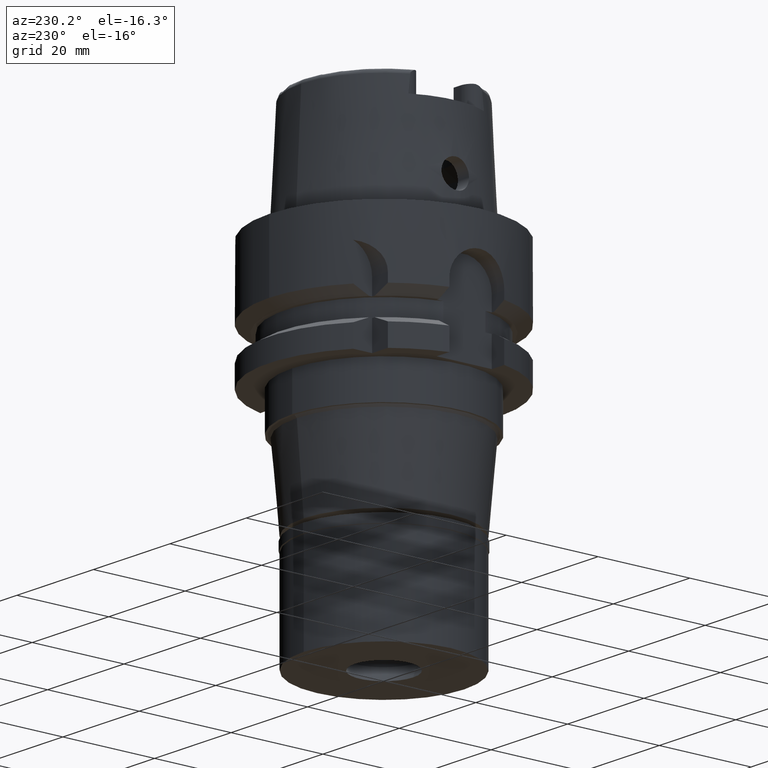
[diagram: clean part render]
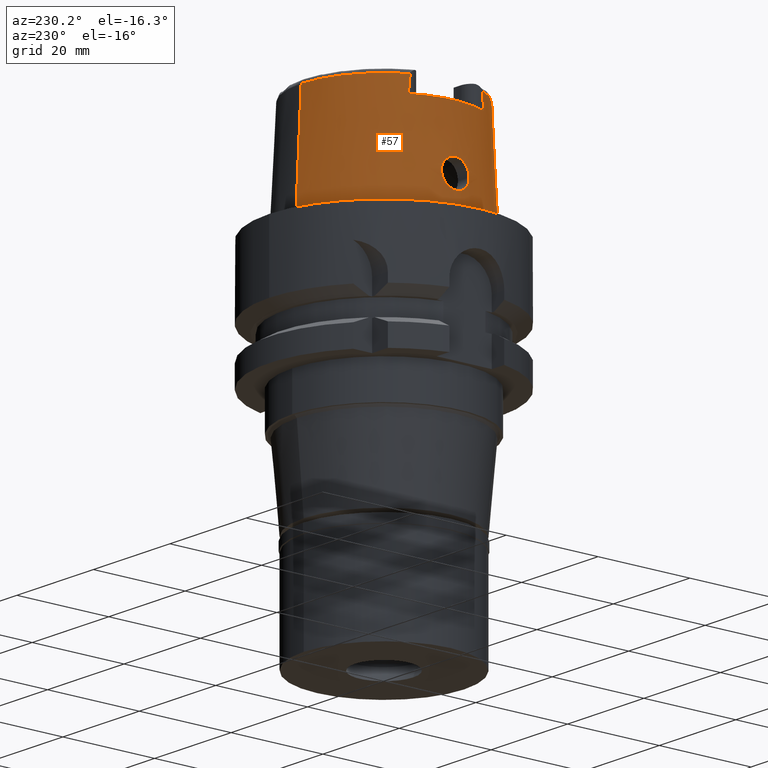
[diagram: same view with one face highlighted and labeled with its STEP entity id]
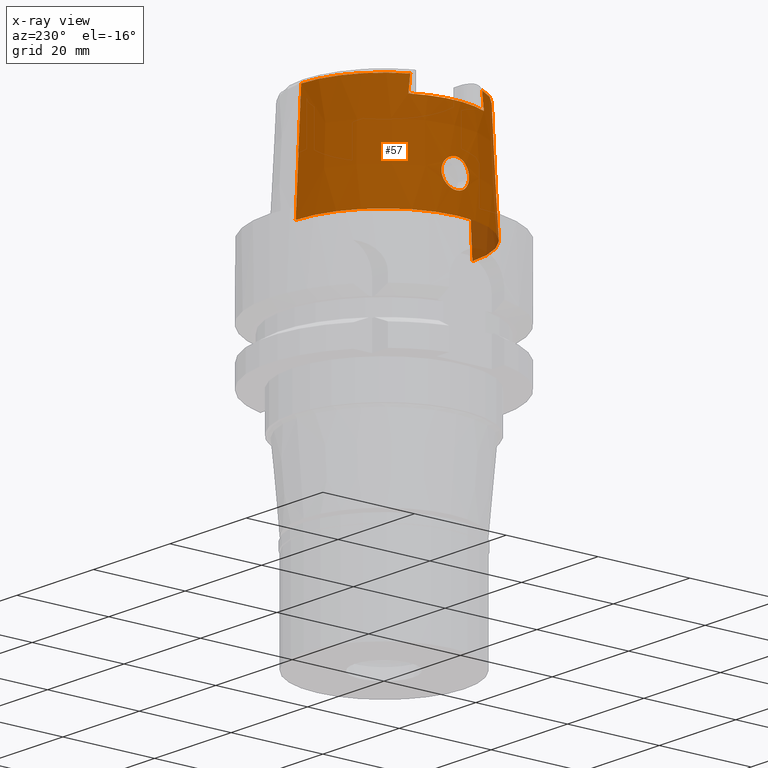
[diagram: x-ray of the same camera — body ghosted, the highlighted face saturated]
A machine part, auxiliary view. The second image highlights one B-rep face of the part: STEP entity #57.
The next image is the same camera in x-ray: the body ghosted, the highlighted face saturated — about 3% of this face is hidden behind the body in this view.
In plain terms, the highlighted conical surface has half-angle 2.862 deg.
Its self-contained STEP definition (entity closure, byte-faithful):
#2 = CARTESIAN_POINT ( 'NONE',  ( -18.78317867109000261, -2.543182901459551282, 5.905781390008264964 ) ) ;
#57 = ADVANCED_FACE ( 'NONE', ( #2540, #5004 ), #3072, .T. ) ;
#77 = CARTESIAN_POINT ( 'NONE',  ( -18.69905174913464663, -1.200609655445082913, 10.24979054899328546 ) ) ;
#87 = CARTESIAN_POINT ( 'NONE',  ( -18.61941794700497965, 2.976814471011775431, 7.884438008179934343 ) ) ;
#93 = DIRECTION ( 'NONE',  ( -0.0008255998758101713419, -0.9999996591923644429, 0.0000000000000000000 ) ) ;
#109 = CARTESIAN_POINT ( 'NONE',  ( -18.72500050292000395, -0.3637979385046110070, 10.49999999999999822 ) ) ;
#115 = CARTESIAN_POINT ( 'NONE',  ( -18.67725256375019782, 1.645140865340761538, 10.00872698857956777 ) ) ;
#140 = CARTESIAN_POINT ( 'NONE',  ( -18.70181002438285489, 2.863970963131752701, 6.605424980111425981 ) ) ;
#160 = CARTESIAN_POINT ( 'NONE',  ( -18.63727310925785474, -2.999781043391905211, 7.457170492873992806 ) ) ;
#165 = CARTESIAN_POINT ( 'NONE',  ( -18.63254420033168302, 2.999662694504059868, 7.550856638169310742 ) ) ;
#193 = CARTESIAN_POINT ( 'NONE',  ( -18.61867736597494272, -2.981641155549509037, 7.884900952623397075 ) ) ;
#198 = CARTESIAN_POINT ( 'NONE',  ( -18.70767736476419074, 0.9777757012461569808, 10.33702110091818582 ) ) ;
#203 = DIRECTION ( 'NONE',  ( 0.0000000000000000000, 0.0000000000000000000, -1.000000000000000000 ) ) ;
#221 = CARTESIAN_POINT ( 'NONE',  ( -18.79116365286348866, 2.505703896633280525, 5.850272712413715936 ) ) ;
#272 = CARTESIAN_POINT ( 'NONE',  ( -18.97336778263396440, 1.214075213159073519, 4.756490140291568913 ) ) ;
#321 = CARTESIAN_POINT ( 'NONE',  ( -18.96722189363222100, 1.284125539225417834, 4.788092424230977251 ) ) ;
#364 = CARTESIAN_POINT ( 'NONE',  ( -16.25999847872000004, -7.831027618096999987, 24.04990900411999988 ) ) ;
#412 = CARTESIAN_POINT ( 'NONE',  ( -18.95243251535256945, -1.442797455025204734, 4.862428241929213080 ) ) ;
#429 = DIRECTION ( 'NONE',  ( 0.0000000000000000000, 0.04993752584486958745, -0.9987523434327917338 ) ) ;
#440 = CARTESIAN_POINT ( 'NONE',  ( -18.99667356104094651, -0.9020090488567584774, 4.638383846352464701 ) ) ;
#486 = CARTESIAN_POINT ( 'NONE',  ( -18.63652154279030526, -2.314451385222980662, 9.409494088307585713 ) ) ;
#494 = CARTESIAN_POINT ( 'NONE',  ( -18.61281738485488546, 2.756672172026412682, 8.683585815113117334 ) ) ;
#511 = AXIS2_PLACEMENT_3D ( 'NONE', #2303, #203, #93 ) ;
#516 = CARTESIAN_POINT ( 'NONE',  ( -18.64363695875750082, -2.996495092323358200, 7.342724136219549003 ) ) ;
#526 = CARTESIAN_POINT ( 'NONE',  ( -18.66678919468971642, 1.830010130735698626, 9.879236572641010738 ) ) ;
#556 = CARTESIAN_POINT ( 'NONE',  ( -18.67649840777863801, 1.658768133261694366, 9.999727965424508369 ) ) ;
#561 = ORIENTED_EDGE ( 'NONE', *, *, #1120, .F. ) ;
#580 = CARTESIAN_POINT ( 'NONE',  ( -18.61118138876417305, 2.906747813182755102, 8.267360866589770652 ) ) ;
#600 = CARTESIAN_POINT ( 'NONE',  ( -18.68037858809938001, -1.592436934103090174, 10.04425144414142324 ) ) ;
#606 = CARTESIAN_POINT ( 'NONE',  ( -18.67930597482952138, 2.930195257452143043, 6.849226751979418104 ) ) ;
#678 = CARTESIAN_POINT ( 'NONE',  ( -16.26000000000000156, 8.231833128876001382, 20.50000000000000000 ) ) ;
#680 = EDGE_CURVE ( 'NONE', #3957, #4911, #1752, .T. ) ;
#682 = CARTESIAN_POINT ( 'NONE',  ( -18.97818491826060949, 1.156531480243881305, 4.731860230907436460 ) ) ;
#733 = CARTESIAN_POINT ( 'NONE',  ( -18.81545218249813800, 2.385618362130512704, 5.678307914358795117 ) ) ;
#760 = DIRECTION ( 'NONE',  ( 0.0000000000000000000, 0.0000000000000000000, -1.000000000000000000 ) ) ;
#794 = CARTESIAN_POINT ( 'NONE',  ( -18.98061824987300739, -1.126521635024176016, 4.719534379617163822 ) ) ;
#823 = CARTESIAN_POINT ( 'NONE',  ( -18.85221763492965508, -2.182749817020052330, 5.439577261374716421 ) ) ;
#850 = CARTESIAN_POINT ( 'NONE',  ( -18.68776496797520892, -2.910133991911544094, 6.744943504827316083 ) ) ;
#862 = ORIENTED_EDGE ( 'NONE', *, *, #3869, .T. ) ;
#909 = CARTESIAN_POINT ( 'NONE',  ( -18.64910187410765730, 2.114915691382066143, 9.627750644070887986 ) ) ;
#926 = CARTESIAN_POINT ( 'NONE',  ( -18.64784935793283793, -2.134264458295163092, 9.608332506129109163 ) ) ;
#932 = CARTESIAN_POINT ( 'NONE',  ( -18.62998369241950769, 2.410739380939730836, 9.296350331518681287 ) ) ;
#962 = CARTESIAN_POINT ( 'NONE',  ( -18.72615670706782964, 2.780065762846364308, 6.372490338762759166 ) ) ;
#990 = CARTESIAN_POINT ( 'NONE',  ( -18.68047219032365902, 1.586056035418208277, 10.04671932015213542 ) ) ;
#1013 = B_SPLINE_CURVE_WITH_KNOTS ( 'NONE', 3,
 ( #3833, #2515, #1268, #3576, #5177, #1357, #198, #1894, #1449, #4813, #2243, #5286, #1473, #1804, #1777, #3103, #3134, #990, #3156, #115, #556, #4754, #526, #4335, #5259, #4396, #3966, #2659, #909, #3044, #932, #2598, #4311, #4840, #2686, #3943, #494, #2180, #3492, #3465, #580, #3884, #87, #2626, #2267, #5201, #165, #2299, #3999, #2214, #606, #3919, #140, #1016, #1382, #3068, #4780, #962, #2708, #5227, #4368, #1830, #1862, #4418, #3516, #3550, #1417, #221, #2327, #733, #2424, #4898, #1496, #4553, #1150, #1937, #2764, #4026, #3211, #2843, #1915, #321, #272, #3596, #3623, #682, #5309, #4475, #4944 ),
 .UNSPECIFIED., .F., .F.,
 ( 4, 2, 2, 1, 1, 1, 2, 2, 2, 2, 1, 2, 2, 2, 1, 1, 2, 2, 2, 2, 1, 1, 2, 2, 2, 2, 1, 2, 2, 2, 2, 1, 1, 1, 2, 2, 2, 2, 1, 2, 2, 2, 1, 1, 2, 2, 2, 2, 1, 1, 2, 2, 4 ),
 ( 0.0000000000000000000, 0.06250000000000212330, 0.09375000000000320577, 0.1093750000000037748, 0.1171875000000040662, 0.1210937500000042882, 0.1230468750000043576, 0.1250000000000044131, 0.1562500000000062728, 0.1718750000000073552, 0.1796875000000078548, 0.1835937500000079659, 0.1875000000000080769, 0.2187500000000090761, 0.2343750000000094369, 0.2421875000000097700, 0.2460937500000099087, 0.2500000000000100475, 0.3125000000000138778, 0.3437500000000155431, 0.3593750000000163758, 0.3671875000000168199, 0.3710937500000167644, 0.3750000000000167644, 0.4375000000000138778, 0.4687500000000121569, 0.4843750000000113798, 0.4921875000000111577, 0.5000000000000108802, 0.5625000000000096589, 0.5937500000000088818, 0.6093750000000084377, 0.6171875000000083267, 0.6210937500000081046, 0.6230468750000079936, 0.6250000000000077716, 0.6562500000000064393, 0.6718750000000059952, 0.6796875000000057732, 0.6835937500000056621, 0.6875000000000055511, 0.7187500000000032196, 0.7343750000000021094, 0.7421875000000015543, 0.7460937500000013323, 0.7500000000000011102, 0.8125000000000004441, 0.8437500000000002220, 0.8593750000000001110, 0.8671875000000000000, 0.8710937500000000000, 0.8749999999999998890, 1.000000000000000000 ),
 .UNSPECIFIED. ) ;
#1016 = CARTESIAN_POINT ( 'NONE',  ( -18.70910209771045629, 2.840347739169283958, 6.531927003020434164 ) ) ;
#1034 = CARTESIAN_POINT ( 'NONE',  ( -18.66412412357258432, -1.869856569162549054, 9.846496997704869969 ) ) ;
#1040 = ORIENTED_EDGE ( 'NONE', *, *, #680, .T. ) ;
#1090 = CARTESIAN_POINT ( 'NONE',  ( 0.0000000000000000000, -18.04750486565000145, 24.04993752584000077 ) ) ;
#1094 = CARTESIAN_POINT ( 'NONE',  ( -16.25999931409999988, 8.099893749617999461, 21.68718078624999990 ) ) ;
#1120 = EDGE_CURVE ( 'NONE', #4487, #4556, #3612, .T. ) ;
#1150 = CARTESIAN_POINT ( 'NONE',  ( -18.85867725433560693, 2.142250277667373748, 5.399781942548933067 ) ) ;
#1181 = CARTESIAN_POINT ( 'NONE',  ( -18.87995039064653469, -2.007836159205104387, 5.270787893602945751 ) ) ;
#1190 = CARTESIAN_POINT ( 'NONE',  ( 0.0000000000000000000, 19.24999954279000036, -4.547473508865000658E-13 ) ) ;
#1207 = CARTESIAN_POINT ( 'NONE',  ( -18.92340212158069335, -1.691084937128544352, 5.020112088376389892 ) ) ;
#1224 = ORIENTED_EDGE ( 'NONE', *, *, #1632, .F. ) ;
#1236 = CARTESIAN_POINT ( 'NONE',  ( -18.98608067023591772, -1.055954342222598763, 4.691784466248174468 ) ) ;
#1266 = CARTESIAN_POINT ( 'NONE',  ( -18.73165997476919387, -2.759713321698162414, 6.323266678885283376 ) ) ;
#1268 = CARTESIAN_POINT ( 'NONE',  ( -18.72301361969066846, 0.3706975056958774495, 10.48348843469886660 ) ) ;
#1348 = CARTESIAN_POINT ( 'NONE',  ( -18.61120518491071962, -2.835180064831738012, 8.482929330333218942 ) ) ;
#1357 = CARTESIAN_POINT ( 'NONE',  ( -18.71009887869995580, 0.9043307040705063082, 10.36090671361495197 ) ) ;
#1376 = CARTESIAN_POINT ( 'NONE',  ( -18.63614077009056658, -3.000018066726839461, 7.478694371440684385 ) ) ;
#1382 = CARTESIAN_POINT ( 'NONE',  ( -18.71813535120809746, 2.808991883812610002, 6.446068522104414278 ) ) ;
#1417 = CARTESIAN_POINT ( 'NONE',  ( -18.78933116117169533, 2.514409614217483657, 5.863559218408338047 ) ) ;
#1449 = CARTESIAN_POINT ( 'NONE',  ( -18.70286926257444549, 1.106233054716735609, 10.28864693192124058 ) ) ;
#1467 = CARTESIAN_POINT ( 'NONE',  ( -18.61225064547191721, -2.776812552685397062, 8.635496264859815696 ) ) ;
#1473 = CARTESIAN_POINT ( 'NONE',  ( -18.69808283884294653, 1.224585729721122007, 10.23990630222132125 ) ) ;
#1487 = EDGE_LOOP ( 'NONE', ( #3785, #4864 ) ) ;
#1496 = CARTESIAN_POINT ( 'NONE',  ( -18.85144546717684477, 2.185080259455117968, 5.444157273464690583 ) ) ;
#1556 = CARTESIAN_POINT ( 'NONE',  ( -16.25999847872000004, -7.831027618096999987, 24.04990900411999988 ) ) ;
#1576 = AXIS2_PLACEMENT_3D ( 'NONE', #2456, #760, #1694 ) ;
#1582 = VECTOR ( 'NONE', #5331, 999.9999999999998863 ) ;
#1607 = CARTESIAN_POINT ( 'NONE',  ( -19.00517147901265602, -0.7591633685799020759, 4.595944160325019290 ) ) ;
#1632 = EDGE_CURVE ( 'NONE', #4258, #5072, #2400, .T. ) ;
#1658 = CARTESIAN_POINT ( 'NONE',  ( -18.86940905254141398, -2.076123621243992634, 5.334340550258338531 ) ) ;
#1693 = CARTESIAN_POINT ( 'NONE',  ( -18.77200600963357502, -2.593870456717403350, 5.989491943404985363 ) ) ;
#1694 = DIRECTION ( 'NONE',  ( 0.0000000000000000000, -1.000000000000000000, 0.0000000000000000000 ) ) ;
#1717 = CARTESIAN_POINT ( 'NONE',  ( -18.66427907820308008, -2.965529357403232869, 7.035906075427675432 ) ) ;
#1722 = B_SPLINE_CURVE_WITH_KNOTS ( 'NONE', 3,
 ( #2155, #4164, #3314, #5420, #1607, #440, #3800, #1236, #3290, #5003, #794, #2454, #2099, #412, #1207, #2073, #2898, #4607, #1181, #5467, #1658, #2872, #4579, #3342, #823, #2130, #2513, #4221, #2, #1693, #3830, #3377, #2538, #5091, #1266, #4664, #850, #1717, #3405, #5167, #516, #3151, #160, #1376, #3960, #193, #1886, #2173, #3993, #1348, #3511, #3127, #3038, #1467, #3878, #4748, #4413, #3095, #3571, #486, #5281, #4833, #2291, #1853, #5220, #926, #1767, #4861, #1034, #4329, #2620, #4304, #600, #3062, #2204, #3458, #2650, #77, #3913, #109, #1799 ),
 .UNSPECIFIED., .F., .F.,
 ( 4, 2, 2, 1, 1, 1, 2, 2, 2, 2, 2, 1, 1, 2, 2, 2, 2, 2, 1, 2, 2, 2, 2, 1, 2, 2, 2, 2, 1, 1, 1, 2, 2, 2, 2, 2, 1, 2, 2, 2, 2, 2, 2, 2, 2, 4 ),
 ( 0.0000000000000000000, 0.06249999999999963918, 0.09374999999999944489, 0.1093749999999993616, 0.1171874999999992784, 0.1210937499999992090, 0.1230468749999991535, 0.1249999999999990979, 0.1874999999999941158, 0.2187499999999917288, 0.2343749999999905076, 0.2421874999999899247, 0.2460937499999895361, 0.2480468749999893974, 0.2499999999999892863, 0.2812499999999892863, 0.3124999999999893419, 0.3437499999999893419, 0.3593749999999894529, 0.3671874999999893974, 0.3749999999999893419, 0.4374999999999899525, 0.4687499999999903411, 0.4843749999999906186, 0.4921874999999905631, 0.4999999999999905076, 0.5624999999999915623, 0.5937499999999920064, 0.6093749999999922284, 0.6171874999999926725, 0.6210937499999928946, 0.6230468749999930056, 0.6249999999999931166, 0.6874999999999946709, 0.7187499999999953371, 0.7343749999999957812, 0.7421874999999961142, 0.7460937499999963363, 0.7499999999999965583, 0.7812499999999971134, 0.7968749999999973355, 0.8124999999999974465, 0.8437499999999977796, 0.8593749999999978906, 0.8749999999999980016, 1.000000000000000000 ),
 .UNSPECIFIED. ) ;
#1742 = ORIENTED_EDGE ( 'NONE', *, *, #4583, .F. ) ;
#1752 = CIRCLE ( 'NONE', #3607, 18.04750486565000145 ) ;
#1767 = CARTESIAN_POINT ( 'NONE',  ( -18.65279574320733857, -2.056289586372749056, 9.686622997890149023 ) ) ;
#1777 = CARTESIAN_POINT ( 'NONE',  ( -18.68813521668147715, 1.437408589533530456, 10.13368189685686005 ) ) ;
#1778 = CARTESIAN_POINT ( 'NONE',  ( 0.0000000000000000000, 0.0000000000000000000, -4.547473508865000658E-13 ) ) ;
#1799 = CARTESIAN_POINT ( 'NONE',  ( -18.72500050292000040, 0.0000000000000000000, 10.50000000000000000 ) ) ;
#1804 = CARTESIAN_POINT ( 'NONE',  ( -18.69444278380571589, 1.306621133543150126, 10.20230204858075496 ) ) ;
#1830 = CARTESIAN_POINT ( 'NONE',  ( -18.76208690752082830, 2.637529628437230489, 6.069666339994657989 ) ) ;
#1841 = DIRECTION ( 'NONE',  ( -0.9009556354130529021, 0.4339112155930774928, 0.0000000000000000000 ) ) ;
#1852 = CARTESIAN_POINT ( 'NONE',  ( -16.26000000000000156, 8.231833128876001382, 20.50000000000000000 ) ) ;
#1853 = CARTESIAN_POINT ( 'NONE',  ( -18.64584753480480117, -2.165874728522636516, 9.575859450428158226 ) ) ;
#1862 = CARTESIAN_POINT ( 'NONE',  ( -18.76779197157903667, 2.612865243537660032, 6.024962557064233337 ) ) ;
#1886 = CARTESIAN_POINT ( 'NONE',  ( -18.61303610622520566, -2.925153289909027787, 8.173098366870430453 ) ) ;
#1894 = CARTESIAN_POINT ( 'NONE',  ( -18.70452629214265983, 1.063438175000103403, 10.30540593042547037 ) ) ;
#1896 = CARTESIAN_POINT ( 'NONE',  ( -16.26000040461999774, 7.831014550164000276, 24.04994510391000162 ) ) ;
#1915 = CARTESIAN_POINT ( 'NONE',  ( -18.96147397444632432, 1.344976372135660458, 4.817993608434972153 ) ) ;
#1937 = CARTESIAN_POINT ( 'NONE',  ( -18.85992151550577844, 2.134818759121343223, 5.392217587759366104 ) ) ;
#1976 = CARTESIAN_POINT ( 'NONE',  ( -16.25999962739999916, -8.231834791749999880, 20.50000000000000000 ) ) ;
#2024 = CARTESIAN_POINT ( 'NONE',  ( -16.25999962739999916, -8.187990026059001281, 20.89607519730999741 ) ) ;
#2073 = CARTESIAN_POINT ( 'NONE',  ( -18.91277015849416188, -1.775396648435067615, 5.079343341467997597 ) ) ;
#2099 = CARTESIAN_POINT ( 'NONE',  ( -18.96796545055018868, -1.283716602487221747, 4.783975356268290291 ) ) ;
#2102 = EDGE_CURVE ( 'NONE', #4487, #5072, #4592, .T. ) ;
#2130 = CARTESIAN_POINT ( 'NONE',  ( -18.84080000300894042, -2.249381134456708953, 5.512533487712890867 ) ) ;
#2155 = CARTESIAN_POINT ( 'NONE',  ( -19.02499995427999835, 7.118153172715999315E-14, 4.500000000000000000 ) ) ;
#2173 = CARTESIAN_POINT ( 'NONE',  ( -18.61188427242171173, -2.901471329166676494, 8.268991016370357272 ) ) ;
#2180 = CARTESIAN_POINT ( 'NONE',  ( -18.61256780151964563, 2.765129814353704418, 8.663689802109667326 ) ) ;
#2204 = CARTESIAN_POINT ( 'NONE',  ( -18.69109305366642815, -1.379399405763861663, 10.16452292278394154 ) ) ;
#2214 = CARTESIAN_POINT ( 'NONE',  ( -18.65614721998135650, 2.984406333693484736, 7.137344372789608649 ) ) ;
#2243 = CARTESIAN_POINT ( 'NONE',  ( -18.70165268465960651, 1.136779477705025743, 10.27628815321805433 ) ) ;
#2267 = CARTESIAN_POINT ( 'NONE',  ( -18.62716879174637441, 2.995867384192600458, 7.669543368057552435 ) ) ;
#2291 = CARTESIAN_POINT ( 'NONE',  ( -18.64397880745533698, -2.195432439327380969, 9.544869848119034828 ) ) ;
#2299 = CARTESIAN_POINT ( 'NONE',  ( -18.63375551728095303, 2.999971391907838125, 7.525916094289049951 ) ) ;
#2303 = CARTESIAN_POINT ( 'NONE',  ( 0.0000000000000000000, 0.0000000000000000000, 24.04993752584000077 ) ) ;
#2327 = CARTESIAN_POINT ( 'NONE',  ( -18.80399899719722256, 2.444277806357642913, 5.757805111364474371 ) ) ;
#2332 = CARTESIAN_POINT ( 'NONE',  ( -19.02499995427999835, 7.118153172715999315E-14, 4.500000000000000000 ) ) ;
#2336 = CARTESIAN_POINT ( 'NONE',  ( 0.0000000000000000000, 0.0000000000000000000, 24.04993752584000077 ) ) ;
#2337 = CARTESIAN_POINT ( 'NONE',  ( 0.0000000000000000000, 18.04750486565000145, 24.04993752584000077 ) ) ;
#2400 = B_SPLINE_CURVE_WITH_KNOTS ( 'NONE', 3,
 ( #1976, #2024, #3666, #5370, #2433, #1556 ),
 .UNSPECIFIED., .F., .F.,
 ( 4, 1, 1, 4 ),
 ( 0.0000000000000000000, 0.3333333333333000081, 0.6666666666667000474, 1.000000000000000000 ),
 .UNSPECIFIED. ) ;
#2424 = CARTESIAN_POINT ( 'NONE',  ( -18.83269794595590696, 2.291969234757045726, 5.563686161005215070 ) ) ;
#2433 = CARTESIAN_POINT ( 'NONE',  ( -16.25999847872000004, -7.876284608195000203, 23.65715737242999950 ) ) ;
#2454 = CARTESIAN_POINT ( 'NONE',  ( -18.98004373367711040, -1.133706729472749419, 4.722459146943703168 ) ) ;
#2456 = CARTESIAN_POINT ( 'NONE',  ( 0.0000000000000000000, 0.0000000000000000000, 12.02496876291999861 ) ) ;
#2481 = EDGE_CURVE ( 'NONE', #5278, #5430, #1013, .T. ) ;
#2513 = CARTESIAN_POINT ( 'NONE',  ( -18.81780650548675382, -2.375131815636476240, 5.664656031185486107 ) ) ;
#2515 = CARTESIAN_POINT ( 'NONE',  ( -18.72500050292001106, 0.1815389271440785712, 10.49999999999999822 ) ) ;
#2538 = CARTESIAN_POINT ( 'NONE',  ( -18.73945542638261230, -2.729724470184710761, 6.255315289836863357 ) ) ;
#2540 = FACE_OUTER_BOUND ( 'NONE', #4312, .T. ) ;
#2598 = CARTESIAN_POINT ( 'NONE',  ( -18.62095515005430002, 2.570892707440523228, 9.049240267330857179 ) ) ;
#2620 = CARTESIAN_POINT ( 'NONE',  ( -18.67107674284521224, -1.752413074471476095, 9.935458923057016278 ) ) ;
#2626 = CARTESIAN_POINT ( 'NONE',  ( -18.62440443592063843, 2.990681400478792717, 7.741099575009626754 ) ) ;
#2650 = CARTESIAN_POINT ( 'NONE',  ( -18.69717036615331196, -1.244721575223609156, 10.23005018655550735 ) ) ;
#2651 = CIRCLE ( 'NONE', #3715, 19.24999954279000036 ) ;
#2657 = VERTEX_POINT ( 'NONE', #1852 ) ;
#2659 = CARTESIAN_POINT ( 'NONE',  ( -18.64960506376501925, 2.107237397729261552, 9.635345913584258071 ) ) ;
#2686 = CARTESIAN_POINT ( 'NONE',  ( -18.61432507904857303, 2.712101770506706977, 8.783720200940825507 ) ) ;
#2708 = CARTESIAN_POINT ( 'NONE',  ( -18.72698259725358483, 2.777032920075449773, 6.365048340933229909 ) ) ;
#2710 = DIRECTION ( 'NONE',  ( 0.0000000000000000000, 0.0000000000000000000, 1.000000000000000000 ) ) ;
#2719 = DIRECTION ( 'NONE',  ( 0.0000000000000000000, 0.0000000000000000000, -1.000000000000000000 ) ) ;
#2759 = CARTESIAN_POINT ( 'NONE',  ( -16.26000040461999774, 7.831014550164000276, 24.04994510391000162 ) ) ;
#2764 = CARTESIAN_POINT ( 'NONE',  ( -18.88799430501260090, 1.966027803270640861, 5.222857145788587729 ) ) ;
#2784 = CARTESIAN_POINT ( 'NONE',  ( -16.26000158539999774, 8.187979356550998844, 20.89609208375999927 ) ) ;
#2813 = EDGE_CURVE ( 'NONE', #5430, #5278, #1722, .T. ) ;
#2820 = EDGE_CURVE ( 'NONE', #4258, #2657, #5396, .T. ) ;
#2838 = CARTESIAN_POINT ( 'NONE',  ( 0.0000000000000000000, -19.24999954279000036, -4.547473508865000658E-13 ) ) ;
#2843 = CARTESIAN_POINT ( 'NONE',  ( -18.94933811697155335, 1.467478060246842908, 4.881796981384058931 ) ) ;
#2872 = CARTESIAN_POINT ( 'NONE',  ( -18.86691185908398438, -2.091808839407306664, 5.349560712084624470 ) ) ;
#2876 = ORIENTED_EDGE ( 'NONE', *, *, #2820, .T. ) ;
#2898 = CARTESIAN_POINT ( 'NONE',  ( -18.89538946612050196, -1.902220355795435580, 5.179555926672670729 ) ) ;
#3038 = CARTESIAN_POINT ( 'NONE',  ( -18.61213278906295443, -2.781558923646045400, 8.623819235707790298 ) ) ;
#3044 = CARTESIAN_POINT ( 'NONE',  ( -18.63814798016250407, 2.280863652930936514, 9.461276206011898893 ) ) ;
#3062 = CARTESIAN_POINT ( 'NONE',  ( -18.68477833114350517, -1.509465249242363694, 10.09445855006025816 ) ) ;
#3068 = CARTESIAN_POINT ( 'NONE',  ( -18.72278343661078281, 2.792348347262630259, 6.403143034044061821 ) ) ;
#3072 = CONICAL_SURFACE ( 'NONE', #1576, 18.64875220421999913, 0.04995830450907576964 ) ;
#3095 = CARTESIAN_POINT ( 'NONE',  ( -18.62683055308948354, -2.473415264283135073, 9.200521107204727045 ) ) ;
#3103 = CARTESIAN_POINT ( 'NONE',  ( -18.68589144687866010, 1.482285421247352408, 10.10876989637839785 ) ) ;
#3127 = CARTESIAN_POINT ( 'NONE',  ( -18.61196454256803179, -2.788619931998781443, 8.606289506589090976 ) ) ;
#3134 = CARTESIAN_POINT ( 'NONE',  ( -18.68231392103234256, 1.551199904050965417, 10.06797419540100158 ) ) ;
#3151 = CARTESIAN_POINT ( 'NONE',  ( -18.63975736061761523, -2.998782478718843070, 7.411544811893497453 ) ) ;
#3156 = CARTESIAN_POINT ( 'NONE',  ( -18.67855100793668655, 1.621441363461073371, 10.02410924385200630 ) ) ;
#3211 = CARTESIAN_POINT ( 'NONE',  ( -18.94039418651771456, 1.550223580942965418, 4.929671809517159886 ) ) ;
#3228 = CARTESIAN_POINT ( 'NONE',  ( -16.26000040461999774, 7.876275909944000730, 23.65715615274000072 ) ) ;
#3244 = EDGE_CURVE ( 'NONE', #4911, #5024, #3735, .T. ) ;
#3290 = CARTESIAN_POINT ( 'NONE',  ( -18.98293083432105988, -1.097154637847971737, 4.707773018089912220 ) ) ;
#3314 = CARTESIAN_POINT ( 'NONE',  ( -19.02122310184812548, -0.3769193520538355879, 4.517418153832864824 ) ) ;
#3342 = CARTESIAN_POINT ( 'NONE',  ( -18.86426480720252385, -2.108307540758153298, 5.365737280677859822 ) ) ;
#3377 = CARTESIAN_POINT ( 'NONE',  ( -18.74745637421124655, -2.698146509456758935, 6.186832263773252905 ) ) ;
#3405 = CARTESIAN_POINT ( 'NONE',  ( -18.65726762748032286, -2.978805363232079451, 7.131702611552607429 ) ) ;
#3458 = CARTESIAN_POINT ( 'NONE',  ( -18.69315047916685657, -1.335110840870665116, 10.18700295190171090 ) ) ;
#3465 = CARTESIAN_POINT ( 'NONE',  ( -18.61031644605866830, 2.850002767053477548, 8.458059885371456588 ) ) ;
#3486 = CARTESIAN_POINT ( 'NONE',  ( 0.0000000000000000000, 0.0000000000000000000, 20.50000000000000000 ) ) ;
#3492 = CARTESIAN_POINT ( 'NONE',  ( -18.61247003993701910, 2.768580712100688679, 8.655473336629986747 ) ) ;
#3511 = CARTESIAN_POINT ( 'NONE',  ( -18.61163173424280970, -2.804685893278555664, 8.565290382349822096 ) ) ;
#3516 = CARTESIAN_POINT ( 'NONE',  ( -18.78136995611826165, 2.551704126634453118, 5.921986728237305542 ) ) ;
#3524 = CARTESIAN_POINT ( 'NONE',  ( -18.72500050292000040, 0.0000000000000000000, 10.50000000000000000 ) ) ;
#3550 = CARTESIAN_POINT ( 'NONE',  ( -18.78612549085294603, 2.529501604452322638, 5.886985501367467677 ) ) ;
#3571 = CARTESIAN_POINT ( 'NONE',  ( -18.63037898539898052, -2.414209528648208813, 9.284097503824535025 ) ) ;
#3576 = CARTESIAN_POINT ( 'NONE',  ( -18.71705297000264068, 0.6602257645272127107, 10.42809783136291912 ) ) ;
#3596 = CARTESIAN_POINT ( 'NONE',  ( -18.97588173148147206, 1.184278940534782887, 4.743625701498292990 ) ) ;
#3607 = AXIS2_PLACEMENT_3D ( 'NONE', #2336, #2719, #1841 ) ;
#3612 = LINE ( 'NONE', #1090, #1582 ) ;
#3623 = CARTESIAN_POINT ( 'NONE',  ( -18.97753102991718421, 1.164467357067795028, 4.735197718324417160 ) ) ;
#3649 = ORIENTED_EDGE ( 'NONE', *, *, #3244, .T. ) ;
#3666 = CARTESIAN_POINT ( 'NONE',  ( -16.25999997104000272, -8.099879603625000257, 21.68713993064000078 ) ) ;
#3705 = AXIS2_PLACEMENT_3D ( 'NONE', #3486, #4808, #5194 ) ;
#3715 = AXIS2_PLACEMENT_3D ( 'NONE', #1778, #2710, #4000 ) ;
#3735 = LINE ( 'NONE', #5079, #4343 ) ;
#3785 = ORIENTED_EDGE ( 'NONE', *, *, #2481, .F. ) ;
#3800 = CARTESIAN_POINT ( 'NONE',  ( -18.99207052213958846, -0.9732742009547534767, 4.661487647606604945 ) ) ;
#3830 = CARTESIAN_POINT ( 'NONE',  ( -18.75558350479443348, -2.664318482958617285, 6.120196878108131955 ) ) ;
#3833 = CARTESIAN_POINT ( 'NONE',  ( -18.72500050292000040, 0.0000000000000000000, 10.50000000000000000 ) ) ;
#3854 = CARTESIAN_POINT ( 'NONE',  ( -16.25999962739999916, -8.231834791749999880, 20.50000000000000000 ) ) ;
#3869 = EDGE_CURVE ( 'NONE', #5024, #4556, #2651, .T. ) ;
#3878 = CARTESIAN_POINT ( 'NONE',  ( -18.61232607733983713, -2.773910023106943346, 8.642562004844288381 ) ) ;
#3884 = CARTESIAN_POINT ( 'NONE',  ( -18.61681658470896750, 2.962906981639342963, 7.980300536546509171 ) ) ;
#3913 = CARTESIAN_POINT ( 'NONE',  ( -18.71701627098605059, -0.7599520513130375576, 10.43298752074954194 ) ) ;
#3919 = CARTESIAN_POINT ( 'NONE',  ( -18.68782683157388647, 2.907045185648555297, 6.752026160832209634 ) ) ;
#3934 = B_SPLINE_CURVE_WITH_KNOTS ( 'NONE', 3,
 ( #2759, #3228, #5408, #1094, #2784, #678 ),
 .UNSPECIFIED., .F., .F.,
 ( 4, 1, 1, 4 ),
 ( 0.0000000000000000000, 0.3333333333333000081, 0.6666666666667000474, 1.000000000000000000 ),
 .UNSPECIFIED. ) ;
#3943 = CARTESIAN_POINT ( 'NONE',  ( -18.61321689961749115, 2.743767292098561850, 8.713495627158971857 ) ) ;
#3957 = VERTEX_POINT ( 'NONE', #1896 ) ;
#3960 = CARTESIAN_POINT ( 'NONE',  ( -18.62535255026045533, -2.999846769408767599, 7.692115881164975910 ) ) ;
#3966 = CARTESIAN_POINT ( 'NONE',  ( -18.65075231478482465, 2.089637710521258462, 9.652571917455318840 ) ) ;
#3993 = CARTESIAN_POINT ( 'NONE',  ( -18.61124940088610913, -2.858515195681694543, 8.411790348910031412 ) ) ;
#3999 = CARTESIAN_POINT ( 'NONE',  ( -18.64391313726241961, 3.000209902200317025, 7.324670880648709748 ) ) ;
#4000 = DIRECTION ( 'NONE',  ( 0.0000000000000000000, 1.000000000000000000, 0.0000000000000000000 ) ) ;
#4026 = CARTESIAN_POINT ( 'NONE',  ( -18.91100231874422022, 1.799091113669154529, 5.091184565906647030 ) ) ;
#4164 = CARTESIAN_POINT ( 'NONE',  ( -19.02499995428000190, -0.1863717386780388841, 4.499999999999995559 ) ) ;
#4221 = CARTESIAN_POINT ( 'NONE',  ( -18.80597264379687417, -2.435470139450023552, 5.745634745394370135 ) ) ;
#4258 = VERTEX_POINT ( 'NONE', #3854 ) ;
#4304 = CARTESIAN_POINT ( 'NONE',  ( -18.67349408148996659, -1.711068129020444584, 9.964652827048535499 ) ) ;
#4311 = CARTESIAN_POINT ( 'NONE',  ( -18.61848195080744617, 2.618534410907606969, 8.966876995507313097 ) ) ;
#4312 = EDGE_LOOP ( 'NONE', ( #1742, #1040, #3649, #862, #561, #4697, #1224, #2876 ) ) ;
#4329 = CARTESIAN_POINT ( 'NONE',  ( -18.66642764611810534, -1.831188989416951518, 9.876795875651653844 ) ) ;
#4331 = CARTESIAN_POINT ( 'NONE',  ( 0.0000000000000000000, -18.04750486565000145, 24.04993752584000077 ) ) ;
#4335 = CARTESIAN_POINT ( 'NONE',  ( -18.65992166762323379, 1.944113887337615809, 9.785354924264064280 ) ) ;
#4343 = VECTOR ( 'NONE', #429, 999.9999999999998863 ) ;
#4368 = CARTESIAN_POINT ( 'NONE',  ( -18.74581924724137139, 2.705704740217513393, 6.200450255635248098 ) ) ;
#4396 = CARTESIAN_POINT ( 'NONE',  ( -18.65247290597431729, 2.063079097964312325, 9.678248390762533404 ) ) ;
#4413 = CARTESIAN_POINT ( 'NONE',  ( -18.61782507401515474, -2.631595726244145617, 8.953590161002733083 ) ) ;
#4418 = CARTESIAN_POINT ( 'NONE',  ( -18.77677333361392797, 2.572630833142406370, 5.956539389520288275 ) ) ;
#4475 = CARTESIAN_POINT ( 'NONE',  ( -19.02499995428000190, 0.3746514729730885951, 4.500000000000007105 ) ) ;
#4487 = VERTEX_POINT ( 'NONE', #4331 ) ;
#4553 = CARTESIAN_POINT ( 'NONE',  ( -18.85578371465327407, 2.159447715980371552, 5.417468438905036265 ) ) ;
#4556 = VERTEX_POINT ( 'NONE', #2838 ) ;
#4579 = CARTESIAN_POINT ( 'NONE',  ( -18.86523960121787269, -2.102255498535692713, 5.359772168550978932 ) ) ;
#4583 = EDGE_CURVE ( 'NONE', #3957, #2657, #3934, .T. ) ;
#4592 = CIRCLE ( 'NONE', #511, 18.04750486564999434 ) ;
#4607 = CARTESIAN_POINT ( 'NONE',  ( -18.88935711070530132, -1.944549598509707211, 5.214852851781641263 ) ) ;
#4664 = CARTESIAN_POINT ( 'NONE',  ( -18.70669094462846260, -2.852376481366544425, 6.546081903271801394 ) ) ;
#4697 = ORIENTED_EDGE ( 'NONE', *, *, #2102, .T. ) ;
#4748 = CARTESIAN_POINT ( 'NONE',  ( -18.61400784510449569, -2.711131010327958002, 8.794261905789216627 ) ) ;
#4754 = CARTESIAN_POINT ( 'NONE',  ( -18.67136145880934350, 1.750855903332870778, 9.938074517514444040 ) ) ;
#4780 = CARTESIAN_POINT ( 'NONE',  ( -18.72480364292348298, 2.785006733670418733, 6.384750621903662271 ) ) ;
#4808 = DIRECTION ( 'NONE',  ( 0.0000000000000000000, 0.0000000000000000000, -1.000000000000000000 ) ) ;
#4813 = CARTESIAN_POINT ( 'NONE',  ( -18.70214164420432823, 1.124562613034739256, 10.28125914290536613 ) ) ;
#4833 = CARTESIAN_POINT ( 'NONE',  ( -18.64218694656779363, -2.223891530834612773, 9.513723306486626896 ) ) ;
#4840 = CARTESIAN_POINT ( 'NONE',  ( -18.61557662424948134, 2.682209431753036721, 8.844568781981422489 ) ) ;
#4861 = CARTESIAN_POINT ( 'NONE',  ( -18.65727663339015052, -1.983558341029308281, 9.752807871445401844 ) ) ;
#4864 = ORIENTED_EDGE ( 'NONE', *, *, #2813, .F. ) ;
#4898 = CARTESIAN_POINT ( 'NONE',  ( -18.84133732406139572, 2.243730581759306730, 5.507530643676890492 ) ) ;
#4911 = VERTEX_POINT ( 'NONE', #2337 ) ;
#4944 = CARTESIAN_POINT ( 'NONE',  ( -19.02499995427999835, 7.118153172715999315E-14, 4.500000000000000000 ) ) ;
#5003 = CARTESIAN_POINT ( 'NONE',  ( -18.98154770965117422, -1.114779351770994742, 4.714805741573223408 ) ) ;
#5004 = FACE_BOUND ( 'NONE', #1487, .T. ) ;
#5024 = VERTEX_POINT ( 'NONE', #1190 ) ;
#5072 = VERTEX_POINT ( 'NONE', #364 ) ;
#5079 = CARTESIAN_POINT ( 'NONE',  ( 0.0000000000000000000, 18.04750486565000145, 24.04993752584000077 ) ) ;
#5091 = CARTESIAN_POINT ( 'NONE',  ( -18.73414950177564720, -2.750259139042119383, 6.301371459144083254 ) ) ;
#5167 = CARTESIAN_POINT ( 'NONE',  ( -18.64797622019812451, -2.991758175103462758, 7.272812607544032915 ) ) ;
#5177 = CARTESIAN_POINT ( 'NONE',  ( -18.71456936596596421, 0.7576758110030762383, 10.40453651220773779 ) ) ;
#5194 = DIRECTION ( 'NONE',  ( -0.8921810005753487705, -0.4516780515061248891, 0.0000000000000000000 ) ) ;
#5201 = CARTESIAN_POINT ( 'NONE',  ( -18.63033981462397648, 2.998483449852695770, 7.598283668046677874 ) ) ;
#5220 = CARTESIAN_POINT ( 'NONE',  ( -18.64711043447374195, -2.145923102113712400, 9.596477960151153397 ) ) ;
#5227 = CARTESIAN_POINT ( 'NONE',  ( -18.73610418291526969, 2.743405807341936509, 6.283174572032640626 ) ) ;
#5259 = CARTESIAN_POINT ( 'NONE',  ( -18.65648562136822619, 2.000009519420141935, 9.737008809813167076 ) ) ;
#5278 = VERTEX_POINT ( 'NONE', #3524 ) ;
#5281 = CARTESIAN_POINT ( 'NONE',  ( -18.63870571340858717, -2.279375332471993421, 9.451294052094548093 ) ) ;
#5286 = CARTESIAN_POINT ( 'NONE',  ( -18.70135009575073681, 1.144267278943255306, 10.27320726840541809 ) ) ;
#5309 = CARTESIAN_POINT ( 'NONE',  ( -19.00971341190632558, 0.7672779415367979583, 4.571171071570563349 ) ) ;
#5331 = DIRECTION ( 'NONE',  ( 0.0000000000000000000, -0.04993752584486958745, -0.9987523434327917338 ) ) ;
#5370 = CARTESIAN_POINT ( 'NONE',  ( -16.26000066025000024, -7.966258492953999237, 22.87044371988000080 ) ) ;
#5396 = CIRCLE ( 'NONE', #3705, 18.22500141733000589 ) ;
#5408 = CARTESIAN_POINT ( 'NONE',  ( -16.26000002255999988, 7.966271241167000028, 22.87049542232000121 ) ) ;
#5420 = CARTESIAN_POINT ( 'NONE',  ( -19.00989254455249977, -0.6635154577821233968, 4.572678202854392637 ) ) ;
#5430 = VERTEX_POINT ( 'NONE', #2332 ) ;
#5467 = CARTESIAN_POINT ( 'NONE',  ( -18.87515748388316794, -2.039427152599165627, 5.299502579253561052 ) ) ;